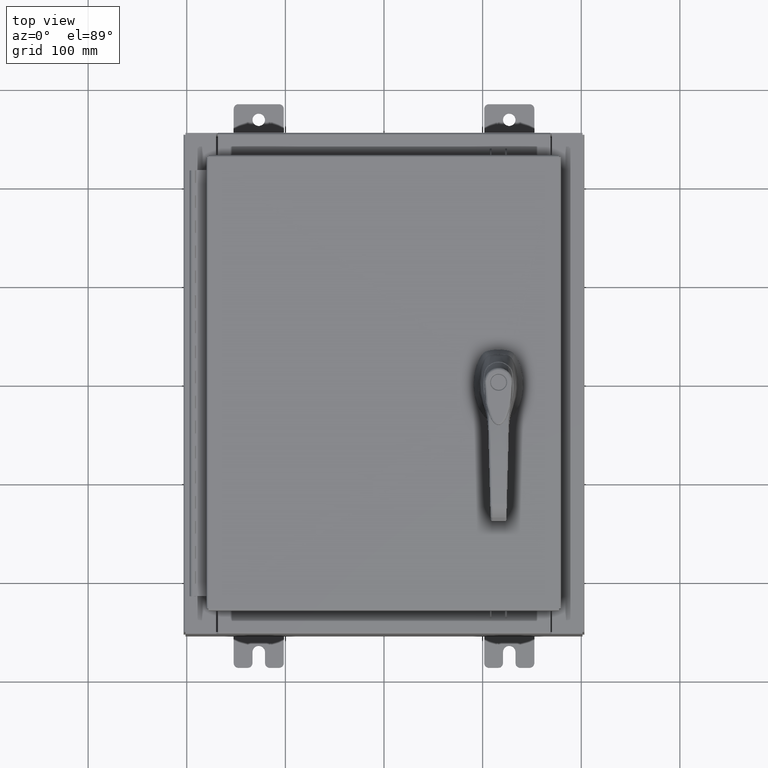
[diagram: clean part render]
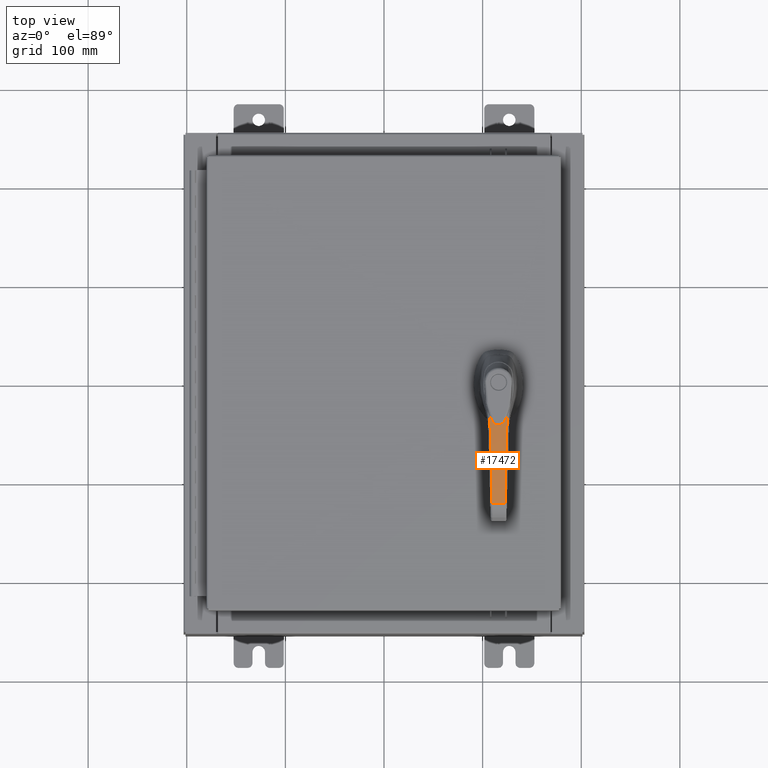
[diagram: same view with one face highlighted and labeled with its STEP entity id]
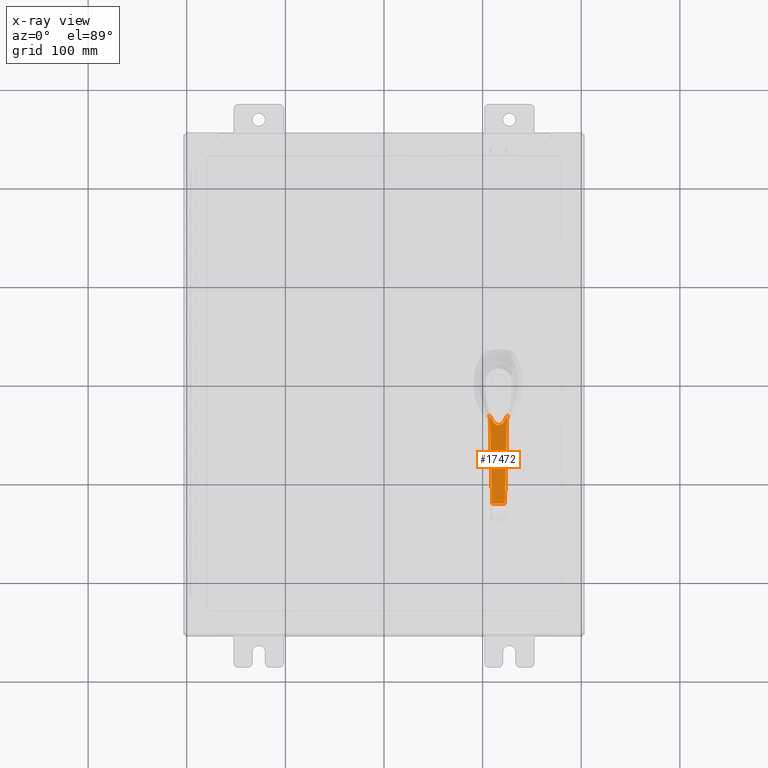
[diagram: x-ray of the same camera — body ghosted, the highlighted face saturated]
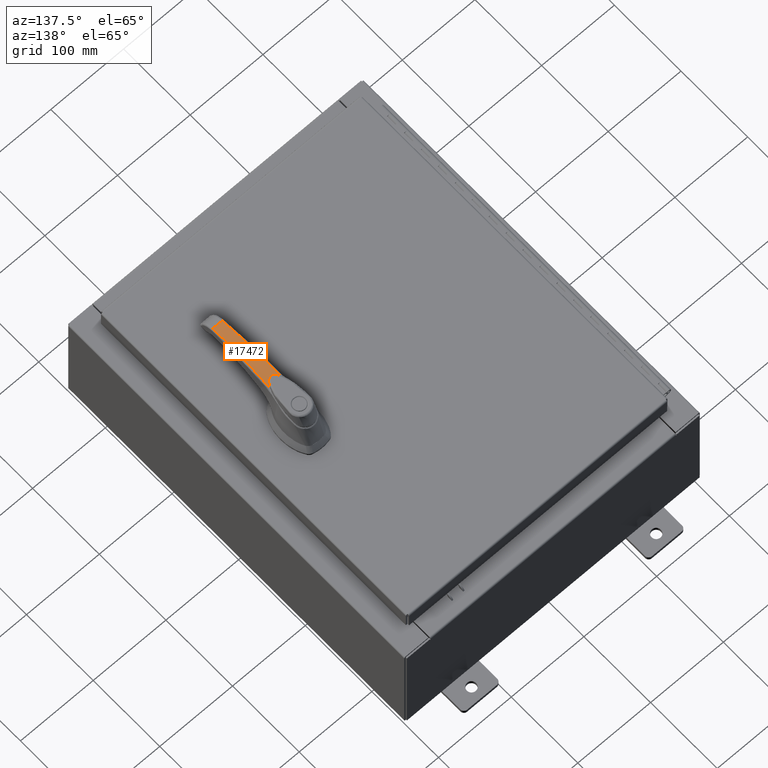
[diagram: same view with one face highlighted and labeled with its STEP entity id]
A machine part, top view. The second image highlights one B-rep face of the part: STEP entity #17472.
The next image is the same camera in x-ray: the body ghosted, the highlighted face saturated — about 0% of this face is hidden behind the body in this view.
A second angle (auxiliary view) of the same face is appended — the face is thin or edge-on in the first view.
In plain terms, the highlighted cylindrical surface (partial cylindrical patch) has radius 300 mm, axis along (-1, 0, 0).
Its self-contained STEP definition (entity closure, byte-faithful):
#631 = CARTESIAN_POINT ( 'NONE',  ( 1.633523690778703000, -0.1294182121702315800, 1.843237296713768700 ) ) ;
#2361 = CARTESIAN_POINT ( 'NONE',  ( 1.516830157375135300, 0.2373842696044991000, 1.827543091604346900 ) ) ;
#3011 = DIRECTION ( 'NONE',  ( 0.0000000000000000000, 1.000000000000000000, 0.0000000000000000000 ) ) ;
#3923 = CARTESIAN_POINT ( 'NONE',  ( 1.632785392386059800, -0.1304217021505263400, 1.843141712585298000 ) ) ;
#4124 = CARTESIAN_POINT ( 'NONE',  ( 3.842159367048327400, 0.2800416382408065800, 1.921681097564914600 ) ) ;
#4484 = CARTESIAN_POINT ( 'NONE',  ( 2.823583190880747400, 0.3065276448944515600, 1.937522127742024900 ) ) ;
#4768 = CARTESIAN_POINT ( 'NONE',  ( 1.665449941461016900, 0.07307405170698719200, 1.847325382728704800 ) ) ;
#6983 = CARTESIAN_POINT ( 'NONE',  ( 1.461149604711799100, 0.3419711910575371500, 1.819977865742893600 ) ) ;
#7624 = CARTESIAN_POINT ( 'NONE',  ( 1.496057899066958900, -0.2514591596072181500, 1.824640546464770400 ) ) ;
#9227 = EDGE_CURVE ( 'NONE', #12425, #56572, #87496, .T. ) ;
#11404 = CARTESIAN_POINT ( 'NONE',  ( 1.285167403707583500, 0.3546133445978453800, 1.792860362760507800 ) ) ;
#12425 = VERTEX_POINT ( 'NONE', #51581 ) ;
#12693 = CARTESIAN_POINT ( 'NONE',  ( 3.523797029380384000, 0.2883190942660985900, 1.935318005950529500 ) ) ;
#13060 = CARTESIAN_POINT ( 'NONE',  ( 2.357254433555596900, 0.3186526733585843800, 1.915122674931469600 ) ) ;
#13973 = CARTESIAN_POINT ( 'NONE',  ( 1.524578228761914300, 0.2319618882066546400, 1.828620816553894600 ) ) ;
#15645 = CARTESIAN_POINT ( 'NONE',  ( 1.631777938687829300, 0.1317797834924152600, 1.843011216588306100 ) ) ;
#15800 = CARTESIAN_POINT ( 'NONE',  ( 1.531637965723847300, 0.2269023104898830500, 1.829598928321424200 ) ) ;
#16388 = CARTESIAN_POINT ( 'NONE',  ( 1.627642221730817300, 0.1372262118340391600, 1.842474734026384500 ) ) ;
#16893 = CARTESIAN_POINT ( 'NONE',  ( 1.450862142650996700, -0.2781988563434960000, 1.818152528769768600 ) ) ;
#17001 = CARTESIAN_POINT ( 'NONE',  ( 1.666216210166185900, 0.07113358953773331300, 1.847422397405533500 ) ) ;
#17111 = DIRECTION ( 'NONE',  ( 0.0000000000000000000, 0.0000000000000000000, -1.000000000000000000 ) ) ;
#17472 = ADVANCED_FACE ( 'NONE', ( #61342 ), #58629, .T. ) ;
#18300 = ORIENTED_EDGE ( 'NONE', *, *, #41825, .F. ) ;
#20728 = CARTESIAN_POINT ( 'NONE',  ( 3.177837644293160400, -0.2973156531871434200, 1.940911141800460300 ) ) ;
#21206 = CARTESIAN_POINT ( 'NONE',  ( 3.354255696629973000, 0.2927274858646526900, 1.939252233246037600 ) ) ;
#21578 = CARTESIAN_POINT ( 'NONE',  ( 1.962192344927163400, 0.3289308373534525200, 1.881644855761424700 ) ) ;
#23337 = CARTESIAN_POINT ( 'NONE',  ( 1.605775901944861400, -0.1635624813666115800, 1.839624697243178200 ) ) ;
#23842 = CARTESIAN_POINT ( 'NONE',  ( 1.412147350919595200, 0.2986147853169351900, 1.812451616407726700 ) ) ;
#23967 = CARTESIAN_POINT ( 'NONE',  ( 1.668765304187870900, -0.06434175467436680000, 1.847744838486964600 ) ) ;
#25719 = DIRECTION ( 'NONE',  ( 0.0000000000000000000, -1.000000000000000000, 0.0000000000000000000 ) ) ;
#27313 = CARTESIAN_POINT ( 'NONE',  ( 1.308225132359822000, 0.3456984148396822200, 1.796546292019673100 ) ) ;
#27913 = CARTESIAN_POINT ( 'NONE',  ( 1.408249181654886300, 0.3005784227495882900, 1.811871312986568900 ) ) ;
#29244 = CARTESIAN_POINT ( 'NONE',  ( 1.634216720233409200, -0.1284710039474825400, 1.843326990127290800 ) ) ;
#29289 = CARTESIAN_POINT ( 'NONE',  ( 2.089199057867317400, -0.3256326111308647800, 1.905831137458304800 ) ) ;
#29440 = CARTESIAN_POINT ( 'NONE',  ( 4.805199877897496900, 0.2549857665720959800, 1.824333981427782400 ) ) ;
#29804 = CARTESIAN_POINT ( 'NONE',  ( 3.255921162986638300, 0.2952847344197879200, 1.940502775483815600 ) ) ;
#30072 = B_SPLINE_CURVE_WITH_KNOTS ( 'NONE', 3,
 ( #100687, #74902, #6983, #66663 ),
 .UNSPECIFIED., .F., .F.,
 ( 4, 4 ),
 ( 0.0000000000000000000, 1.000000000000000000 ),
 .UNSPECIFIED. ) ;
#30166 = CARTESIAN_POINT ( 'NONE',  ( 1.638260262526217000, 0.3373621368790556400, 1.844188585699163800 ) ) ;
#30222 = CARTESIAN_POINT ( 'NONE',  ( 1.680095335233368100, -0.01197136183687798000, 1.849171087712740500 ) ) ;
#30549 = B_SPLINE_CURVE_WITH_KNOTS ( 'NONE', 3,
 ( #63297, #105914, #71906, #20728, #80457, #29289, #89024 ),
 .UNSPECIFIED., .F., .F.,
 ( 4, 3, 4 ),
 ( 0.0000000000000000000, 0.4999999999999983900, 1.000000000000000000 ),
 .UNSPECIFIED. ) ;
#30818 = CARTESIAN_POINT ( 'NONE',  ( 1.666720180148481200, 0.06983946041971624000, 1.847486187034457700 ) ) ;
#31087 = CARTESIAN_POINT ( 'NONE',  ( 1.285167405151898400, -0.3546133440856412100, 1.792860362220502400 ) ) ;
#31789 = EDGE_CURVE ( 'NONE', #102781, #56572, #35263, .T. ) ;
#32190 = CARTESIAN_POINT ( 'NONE',  ( 1.638941990221857400, -0.1218315539769631400, 1.843937560668217300 ) ) ;
#33027 = CARTESIAN_POINT ( 'NONE',  ( 1.667982851357451300, -0.06648546394591629800, 1.847645912295601500 ) ) ;
#33621 = EDGE_CURVE ( 'NONE', #78582, #109072, #87973, .T. ) ;
#33665 = CARTESIAN_POINT ( 'NONE',  ( 1.666943250047650200, 0.06925946003726704500, 1.847514415332581800 ) ) ;
#35263 = B_SPLINE_CURVE_WITH_KNOTS ( 'NONE', 3,
 ( #84257, #67108, #41718, #101484 ),
 .UNSPECIFIED., .F., .F.,
 ( 4, 4 ),
 ( 0.0000000000000000000, 1.000000000000000000 ),
 .UNSPECIFIED. ) ;
#36415 = CARTESIAN_POINT ( 'NONE',  ( 1.597928116298629200, 0.1710148495156830500, 1.838578136496558100 ) ) ;
#37332 = CARTESIAN_POINT ( 'NONE',  ( 1.675872596846181600, 0.04566907200706407000, 1.848644063507531400 ) ) ;
#37450 = VECTOR ( 'NONE', #3011, 39.37007874015748100 ) ;
#38382 = CARTESIAN_POINT ( 'NONE',  ( 3.197470930382345000, 0.2968049740498352500, 1.940850218433535700 ) ) ;
#40078 = CARTESIAN_POINT ( 'NONE',  ( 1.662946339963039100, -0.07969119123599842400, 1.847008659323601900 ) ) ;
#40216 = CARTESIAN_POINT ( 'NONE',  ( 1.549936709521848100, 0.3396595521461270900, 1.832114909085234400 ) ) ;
#40669 = CARTESIAN_POINT ( 'NONE',  ( 1.632357006304437000, 0.1310003132830380700, 1.843086230139446400 ) ) ;
#41339 = CARTESIAN_POINT ( 'NONE',  ( 4.805199877897497800, -0.2549857665720936500, 1.824333981427782400 ) ) ;
#41418 = CARTESIAN_POINT ( 'NONE',  ( 1.609689720394137200, 0.1588428430745450500, 1.840131652460306400 ) ) ;
#41718 = CARTESIAN_POINT ( 'NONE',  ( 1.372892883534211400, -0.3469424119739045200, 1.806884306011910200 ) ) ;
#41825 = EDGE_CURVE ( 'NONE', #80709, #102781, #30549, .T. ) ;
#42530 = CARTESIAN_POINT ( 'NONE',  ( 1.658104608024421300, -0.08997679606067522700, 1.846394063252969600 ) ) ;
#44852 = CARTESIAN_POINT ( 'NONE',  ( 1.456517634884649400, 0.2752119614751013000, 1.818981777874292700 ) ) ;
#45212 = CARTESIAN_POINT ( 'NONE',  ( 1.362201980543991300, 0.3225149545132348100, 1.804919336107086500 ) ) ;
#45336 = CARTESIAN_POINT ( 'NONE',  ( 1.330367034998300800, 0.3365594585218244000, 1.800015887332627700 ) ) ;
#45728 = ORIENTED_EDGE ( 'NONE', *, *, #31789, .F. ) ;
#45775 = CARTESIAN_POINT ( 'NONE',  ( 1.536332061329278800, -0.2234729747293776300, 1.830247252460746300 ) ) ;
#46284 = CARTESIAN_POINT ( 'NONE',  ( 1.531099334706964100, 0.2272923127439798700, 1.829524427485562000 ) ) ;
#46574 = CARTESIAN_POINT ( 'NONE',  ( 4.384581782162134000, 0.2659316760357903200, 1.876757077655745200 ) ) ;
#46944 = CARTESIAN_POINT ( 'NONE',  ( 3.183455179332785900, 0.2971695341875233400, 1.940896711539991800 ) ) ;
#47848 = CARTESIAN_POINT ( 'NONE',  ( 1.549882932702344200, -0.2132559411452238700, 1.832109519501141400 ) ) ;
#48817 = CARTESIAN_POINT ( 'NONE',  ( 1.377774985390543000, 0.3154086851259892400, 1.807295794097437900 ) ) ;
#50167 = CARTESIAN_POINT ( 'NONE',  ( 1.580548218858697200, -0.1876082219816772000, 1.836261751761620200 ) ) ;
#50818 = CARTESIAN_POINT ( 'NONE',  ( 1.640565656399495000, 0.1198494022903185000, 1.844149003382669500 ) ) ;
#51056 = CARTESIAN_POINT ( 'NONE',  ( 1.635815798552256600, -0.1262595667975525100, 1.843533802100506300 ) ) ;
#51581 = CARTESIAN_POINT ( 'NONE',  ( 1.285167403707583500, 0.3546133445978453800, 1.792860362760507800 ) ) ;
#51793 = CARTESIAN_POINT ( 'NONE',  ( 1.431996714045676000, -0.2883624919504084700, 1.815388736092747000 ) ) ;
#53022 = CARTESIAN_POINT ( 'NONE',  ( 1.649525308882289200, -0.1053112417757877500, 1.845297665867063200 ) ) ;
#53414 = CARTESIAN_POINT ( 'NONE',  ( 1.486437698170242500, 0.2572311655015946900, 1.823263412956679800 ) ) ;
#53472 = CARTESIAN_POINT ( 'NONE',  ( 1.549936709521859000, -0.3396595521461253700, 1.832114909085235600 ) ) ;
#53549 = CARTESIAN_POINT ( 'NONE',  ( 1.412839862362145600, -0.2982642543102410600, 1.812554586203142200 ) ) ;
#53913 = CARTESIAN_POINT ( 'NONE',  ( 1.410378708594597600, 0.2995076315425556600, 1.812188464822335600 ) ) ;
#55181 = CARTESIAN_POINT ( 'NONE',  ( 3.988872018762663600, 0.2762265065312504700, 1.911874702511218400 ) ) ;
#55546 = CARTESIAN_POINT ( 'NONE',  ( 2.994844391632358200, 0.3020755544132373000, 1.941348543382791100 ) ) ;
#56352 = CARTESIAN_POINT ( 'NONE',  ( 1.514556654445395700, -0.2392854525976224900, 1.827236800739576500 ) ) ;
#56572 = VERTEX_POINT ( 'NONE', #102540 ) ;
#56923 = ORIENTED_EDGE ( 'NONE', *, *, #73608, .T. ) ;
#57230 = CARTESIAN_POINT ( 'NONE',  ( 1.673618130089375500, -0.04931904063700305600, 1.848357284676164200 ) ) ;
#57605 = CARTESIAN_POINT ( 'NONE',  ( 1.630415031557484800, 0.1335971382965786800, 1.842834560165926400 ) ) ;
#58215 = CARTESIAN_POINT ( 'NONE',  ( 1.413242188827258200, -0.2980603697912322400, 1.812614391285411100 ) ) ;
#58629 = CYLINDRICAL_SURFACE ( 'NONE', #103419, 11.81102362204724300 ) ;
#59534 = CARTESIAN_POINT ( 'NONE',  ( 1.659580715408767400, 0.08662144301095381400, 1.846580881106998800 ) ) ;
#59810 = CARTESIAN_POINT ( 'NONE',  ( 1.417457569571613400, -0.2959139997767300500, 1.813240278477134900 ) ) ;
#60218 = LINE ( 'NONE', #88049, #37450 ) ;
#61342 = FACE_OUTER_BOUND ( 'NONE', #80552, .T. ) ;
#62533 = CARTESIAN_POINT ( 'NONE',  ( 1.411289339368788000, 0.2990482287359028100, 1.812323976823124300 ) ) ;
#63297 = CARTESIAN_POINT ( 'NONE',  ( 4.805199877897497800, -0.2549857665720936500, 1.824333981427782400 ) ) ;
#63795 = CARTESIAN_POINT ( 'NONE',  ( 3.605464906671495700, 0.2861957975425940000, 1.932408694108102900 ) ) ;
#63965 = CARTESIAN_POINT ( 'NONE',  ( 1.647126988818380200, 0.1096758325861598200, 1.844991371880547100 ) ) ;
#64165 = CARTESIAN_POINT ( 'NONE',  ( 2.504789629931729600, 0.3148162043671251500, 1.924408988684542400 ) ) ;
#64951 = CARTESIAN_POINT ( 'NONE',  ( 1.403971242061131700, 0.3027154104630230300, 1.811233171745011900 ) ) ;
#66663 = CARTESIAN_POINT ( 'NONE',  ( 1.549936709521848100, 0.3396595521461270900, 1.832114909085234400 ) ) ;
#67108 = CARTESIAN_POINT ( 'NONE',  ( 1.461149604711532000, -0.3419711910575428700, 1.819977865742856000 ) ) ;
#67197 = CARTESIAN_POINT ( 'NONE',  ( 1.644906487703457200, -0.1129549742528684600, 1.844705813593933800 ) ) ;
#67322 = CARTESIAN_POINT ( 'NONE',  ( 1.533023177175520900, -0.2258956494556961500, 1.829790409659591400 ) ) ;
#68057 = CARTESIAN_POINT ( 'NONE',  ( 1.675677567251034000, -0.04071549074534740900, 1.848616337587193300 ) ) ;
#71743 = CARTESIAN_POINT ( 'NONE',  ( 1.530290378760440900, 0.2278771327639587700, 1.829412508182425700 ) ) ;
#71906 = CARTESIAN_POINT ( 'NONE',  ( 3.722113557932751800, -0.2831583025764936600, 1.939610180467789000 ) ) ;
#72414 = CARTESIAN_POINT ( 'NONE',  ( 3.397158093014658800, 0.2916119047857188600, 1.938425827258925000 ) ) ;
#72781 = CARTESIAN_POINT ( 'NONE',  ( 2.085957004588871100, 0.3257099898517480400, 1.893740539790302400 ) ) ;
#73558 = CARTESIAN_POINT ( 'NONE',  ( 1.466267725725023800, -0.2693476378157188500, 1.820376805866247300 ) ) ;
#73608 = EDGE_CURVE ( 'NONE', #80709, #78582, #60218, .T. ) ;
#73663 = CARTESIAN_POINT ( 'NONE',  ( 1.373760058113485000, -0.3180463064242660100, 1.806743859184427100 ) ) ;
#73686 = CARTESIAN_POINT ( 'NONE',  ( 1.633059957810182300, -0.1300495619729993800, 1.843177265309141600 ) ) ;
#74072 = CARTESIAN_POINT ( 'NONE',  ( 1.667452722112527900, -0.06791437558087425100, 1.847578869016391200 ) ) ;
#74902 = CARTESIAN_POINT ( 'NONE',  ( 1.372892883534751800, 0.3469424119738765400, 1.806884306011990600 ) ) ;
#75550 = CARTESIAN_POINT ( 'NONE',  ( 1.663589786831885200, 0.07759667621417810900, 1.847089689351789000 ) ) ;
#75991 = CARTESIAN_POINT ( 'NONE',  ( 1.500882007459669400, 0.2481468865976165000, 1.825310919166957200 ) ) ;
#76961 = ORIENTED_EDGE ( 'NONE', *, *, #95705, .F. ) ;
#78582 = VERTEX_POINT ( 'NONE', #108622 ) ;
#80457 = CARTESIAN_POINT ( 'NONE',  ( 2.633561730653564600, -0.3114730037977933000, 1.942212103133131400 ) ) ;
#80552 = EDGE_LOOP ( 'NONE', ( #56923, #85929, #76961, #90513, #45728, #18300 ) ) ;
#80661 = CARTESIAN_POINT ( 'NONE',  ( 1.531841238162610500, 0.2267549729690646600, 1.829627039123025200 ) ) ;
#80709 = VERTEX_POINT ( 'NONE', #41339 ) ;
#80955 = CARTESIAN_POINT ( 'NONE',  ( 3.288871157594097200, 0.2944278238416445100, 1.940143925120731700 ) ) ;
#81328 = CARTESIAN_POINT ( 'NONE',  ( 1.738344976384683900, 0.3347569108671062400, 1.856868895625623600 ) ) ;
#81751 = CARTESIAN_POINT ( 'NONE',  ( 1.532357968586527600, -0.2263797702776801100, 1.829698477823363100 ) ) ;
#83930 = CARTESIAN_POINT ( 'NONE',  ( 1.678980772138702900, -0.02348651453883024400, 1.849031485695043800 ) ) ;
#84257 = CARTESIAN_POINT ( 'NONE',  ( 1.549936709521859000, -0.3396595521461253700, 1.832114909085235600 ) ) ;
#84544 = CARTESIAN_POINT ( 'NONE',  ( 1.655649401556312400, 0.09432184503515099500, 1.846080186316502600 ) ) ;
#85061 = CARTESIAN_POINT ( 'NONE',  ( 1.632741932373680700, 0.1304805322846232000, 1.843136084596468200 ) ) ;
#85585 = CARTESIAN_POINT ( 'NONE',  ( 1.670501837927473600, -0.05933737364029612700, 1.847964213049003900 ) ) ;
#85929 = ORIENTED_EDGE ( 'NONE', *, *, #33621, .T. ) ;
#87027 = CARTESIAN_POINT ( 'NONE',  ( 1.553573932691922000, 0.2109698468301410000, 1.832631472685386300 ) ) ;
#87267 = CARTESIAN_POINT ( 'NONE',  ( 1.415001884902496600, -0.2971666495078784700, 1.812875826676418400 ) ) ;
#87419 = CARTESIAN_POINT ( 'NONE',  ( 1.395339831983441600, 0.3069710070873726300, 1.809941467447426800 ) ) ;
#87496 = B_SPLINE_CURVE_WITH_KNOTS ( 'NONE', 3,
 ( #11404, #27313, #45336, #45212, #48817, #87419, #64951, #27913, #53913, #62533, #95866, #23842, #97956, #44852, #53414, #75991, #2361, #13973, #88869, #71743, #46284, #15800, #80661, #87027, #102499, #36415, #41418, #98200, #16388, #57605, #15645, #40669, #85061, #91079, #50818, #63965, #84544, #59534, #75550, #4768, #17001, #30818, #33665, #37332, #96593, #30222, #83930, #68057, #57230, #85585, #23967, #33027, #74072, #110367, #40078, #42530, #53022, #67197, #32190, #51056, #29244, #631, #73686, #3923, #93044, #23337, #50167, #101157, #47848, #105972, #45775, #109014, #67322, #81751, #101930, #56352, #7624, #73558, #16893, #51793, #89084, #59810, #87267, #100934, #58215, #53549, #73663, #90452, #31087 ),
 .UNSPECIFIED., .F., .F.,
 ( 4, 2, 1, 1, 1, 1, 1, 2, 2, 2, 1, 1, 1, 1, 1, 2, 2, 2, 1, 1, 1, 1, 1, 2, 2, 2, 1, 1, 1, 2, 2, 2, 2, 1, 1, 1, 2, 2, 2, 1, 1, 1, 1, 2, 2, 2, 1, 1, 1, 1, 1, 2, 2, 2, 1, 1, 1, 1, 1, 2, 2, 4 ),
 ( 0.0000000000000000000, 0.06249999999996815000, 0.09374999999995251000, 0.1093749999999447100, 0.1171874999999410500, 0.1210937499999395100, 0.1230468749999387300, 0.1240234374999383100, 0.1249999999999378800, 0.1874999999999314700, 0.2187499999999286100, 0.2343749999999275300, 0.2421874999999269200, 0.2460937499999266700, 0.2480468749999268100, 0.2490234374999269200, 0.2499999999999270000, 0.3124999999999368800, 0.3437499999999417700, 0.3593749999999442700, 0.3671874999999457700, 0.3710937499999464900, 0.3730468749999466000, 0.3740234374999464300, 0.3749999999999462700, 0.4062499999999482600, 0.4218749999999491500, 0.4296874999999496000, 0.4335937499999499800, 0.4355468749999501500, 0.4374999999999503200, 0.4999999999999544800, 0.5312499999999565900, 0.5468749999999577000, 0.5546874999999581400, 0.5585937499999582600, 0.5605468749999583700, 0.5624999999999584800, 0.5937499999999634700, 0.6093749999999660300, 0.6171874999999673600, 0.6210937499999680300, 0.6230468749999683600, 0.6240234374999685800, 0.6249999999999686900, 0.6874999999999671400, 0.7187499999999663600, 0.7343749999999660300, 0.7421874999999658100, 0.7460937499999656900, 0.7480468749999656900, 0.7490234374999654700, 0.7499999999999651400, 0.8124999999999749100, 0.8437499999999793500, 0.8593749999999812400, 0.8671874999999823500, 0.8710937499999827900, 0.8730468749999826800, 0.8740234374999822400, 0.8749999999999819000, 1.000000000000000000 ),
 .UNSPECIFIED. ) ;
#87973 = B_SPLINE_CURVE_WITH_KNOTS ( 'NONE', 3,
 ( #29440, #89174, #97772, #46574, #106415, #55181, #4124, #63795, #12693, #72414, #21206, #80955, #29804, #89550, #38382, #98139, #46944, #106785, #55546, #4484, #64165, #13060, #72781, #21578, #81328, #30166, #89919 ),
 .UNSPECIFIED., .F., .F.,
 ( 4, 2, 2, 2, 2, 2, 1, 1, 1, 2, 2, 2, 2, 2, 4 ),
 ( 0.0000000000000000000, 0.1250000000000066100, 0.2500000000000132100, 0.3750000000000198200, 0.4375000000000230900, 0.4687500000000247600, 0.4843750000000258100, 0.4921875000000263700, 0.4960937500000263700, 0.4980468750000264200, 0.5000000000000264200, 0.6250000000000197600, 0.7500000000000132100, 0.8750000000000065500, 1.000000000000000000 ),
 .UNSPECIFIED. ) ;
#88049 = CARTESIAN_POINT ( 'NONE',  ( 4.805199877897498700, 6.099088612688645700, 1.824333981427783700 ) ) ;
#88869 = CARTESIAN_POINT ( 'NONE',  ( 1.528395749153942800, 0.2292404292824109500, 1.829150185326987400 ) ) ;
#89024 = CARTESIAN_POINT ( 'NONE',  ( 1.549936709521859000, -0.3396595521461253700, 1.832114909085235600 ) ) ;
#89084 = CARTESIAN_POINT ( 'NONE',  ( 1.422341089794108900, -0.2934036132516573100, 1.813963700160028600 ) ) ;
#89174 = CARTESIAN_POINT ( 'NONE',  ( 4.713819558154678900, 0.2573626924901422100, 1.837270814955571000 ) ) ;
#89550 = CARTESIAN_POINT ( 'NONE',  ( 3.217029300581202300, 0.2962962612095056400, 1.940761667420589200 ) ) ;
#89919 = CARTESIAN_POINT ( 'NONE',  ( 1.549936709521848100, 0.3396595521461270900, 1.832114909085234400 ) ) ;
#90452 = CARTESIAN_POINT ( 'NONE',  ( 1.331296485917116400, -0.3367782127205265500, 1.800234481340103700 ) ) ;
#90513 = ORIENTED_EDGE ( 'NONE', *, *, #9227, .T. ) ;
#91079 = CARTESIAN_POINT ( 'NONE',  ( 1.632892665029209700, 0.1302765233638269200, 1.843155604267183300 ) ) ;
#93044 = CARTESIAN_POINT ( 'NONE',  ( 1.620322453436930900, -0.1472583990823385100, 1.841527598334620000 ) ) ;
#93996 = CARTESIAN_POINT ( 'NONE',  ( 3.149606299212600400, 0.3588687022006186700, -9.870078740157481400 ) ) ;
#95705 = EDGE_CURVE ( 'NONE', #12425, #109072, #30072, .T. ) ;
#95866 = CARTESIAN_POINT ( 'NONE',  ( 1.411895976838739800, 0.2987418508005002500, 1.812414227103907000 ) ) ;
#96593 = CARTESIAN_POINT ( 'NONE',  ( 1.680175953285407000, 0.02266160196180203400, 1.849181196457978100 ) ) ;
#97772 = CARTESIAN_POINT ( 'NONE',  ( 4.611449591161986400, 0.2600272595664902500, 1.850686182147238200 ) ) ;
#97956 = CARTESIAN_POINT ( 'NONE',  ( 1.435195623636535500, 0.2869488096781734300, 1.815878705668508000 ) ) ;
#98139 = CARTESIAN_POINT ( 'NONE',  ( 3.189064689842291900, 0.2970236258625775800, 1.940879303231489700 ) ) ;
#98200 = CARTESIAN_POINT ( 'NONE',  ( 1.621908635050497000, 0.1444618146254948700, 1.841728913890022800 ) ) ;
#100687 = CARTESIAN_POINT ( 'NONE',  ( 1.285167403707583500, 0.3546133445978453800, 1.792860362760507800 ) ) ;
#100934 = CARTESIAN_POINT ( 'NONE',  ( 1.413946465048467000, -0.2977029543502160400, 1.812719044079245100 ) ) ;
#101157 = CARTESIAN_POINT ( 'NONE',  ( 1.567082441918983000, -0.1995284965863739800, 1.834452944274883600 ) ) ;
#101484 = CARTESIAN_POINT ( 'NONE',  ( 1.285167405151898400, -0.3546133440856412100, 1.792860362220502400 ) ) ;
#101930 = CARTESIAN_POINT ( 'NONE',  ( 1.531958825236969800, -0.2266696006880540300, 1.829643296008418600 ) ) ;
#102499 = CARTESIAN_POINT ( 'NONE',  ( 1.572688659303555600, 0.1951527432348471000, 1.835214844775206400 ) ) ;
#102540 = CARTESIAN_POINT ( 'NONE',  ( 1.285167405151898400, -0.3546133440856412100, 1.792860362220502400 ) ) ;
#102781 = VERTEX_POINT ( 'NONE', #53472 ) ;
#103419 = AXIS2_PLACEMENT_3D ( 'NONE', #93996, #25719, #17111 ) ;
#105914 = CARTESIAN_POINT ( 'NONE',  ( 4.266296091497493700, -0.2690033809075378900, 1.900627307953364000 ) ) ;
#105972 = CARTESIAN_POINT ( 'NONE',  ( 1.540911026017887300, -0.2200747778046581700, 1.830878084273666500 ) ) ;
#106415 = CARTESIAN_POINT ( 'NONE',  ( 4.260082169442985600, 0.2691715254287422900, 1.889412627025912600 ) ) ;
#106785 = CARTESIAN_POINT ( 'NONE',  ( 3.180696913865969300, 0.2972412797304878600, 1.940904307400735100 ) ) ;
#108622 = CARTESIAN_POINT ( 'NONE',  ( 4.805199877897496900, 0.2549857665720959800, 1.824333981427782400 ) ) ;
#109014 = CARTESIAN_POINT ( 'NONE',  ( 1.534019329573112600, -0.2251692678404879100, 1.829928034573026000 ) ) ;
#109072 = VERTEX_POINT ( 'NONE', #40216 ) ;
#110367 = CARTESIAN_POINT ( 'NONE',  ( 1.667157571439228600, -0.06869618003176464200, 1.847541531571267300 ) ) ;